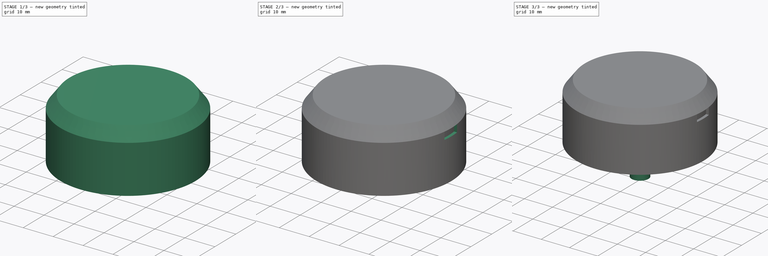
[diagram: build sequence overview — one tinted view per stage of 3, left to right]
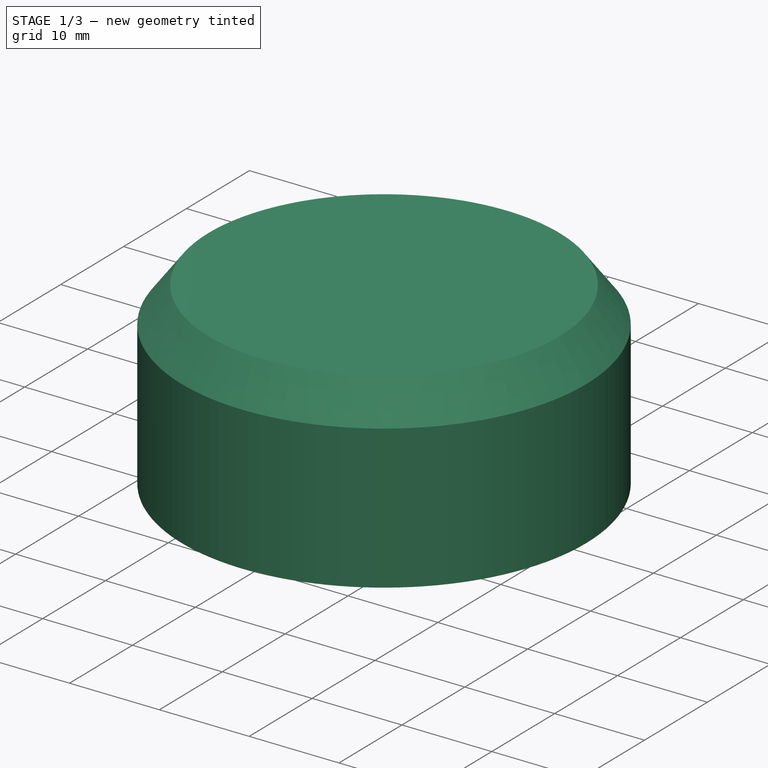
[diagram: stage 1 of 3 — iso view after this stage's code; geometry added in this stage tinted green]
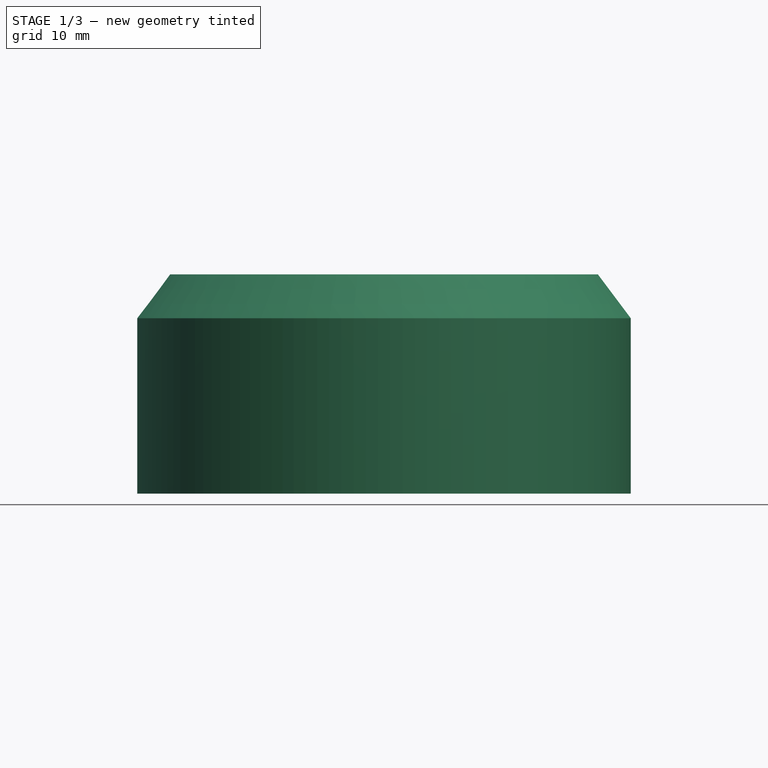
[diagram: stage 1 of 3 — front view after this stage's code; geometry added in this stage tinted green]
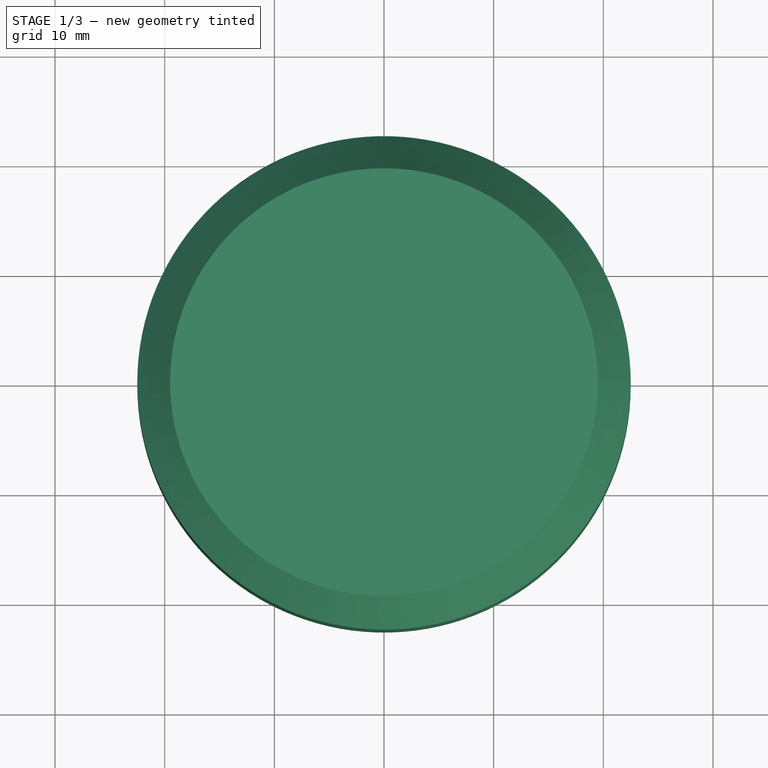
[diagram: stage 1 of 3 — top view after this stage's code; geometry added in this stage tinted green]
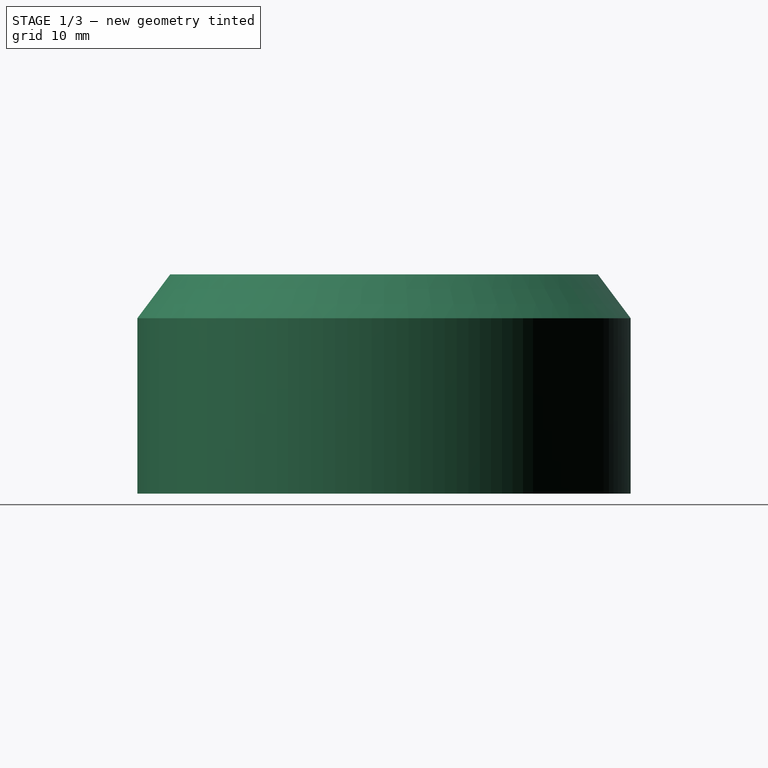
[diagram: stage 1 of 3 — right view after this stage's code; geometry added in this stage tinted green]
FCSTD DOCUMENT  (FreeCAD 0.19R24291 (Git))
Label: windDirectionHolder
License: All rights reserved
LicenseURL: http://en.wikipedia.org/wiki/All_rights_reserved
objects: Sketcher::SketchObject×4, PartDesign::Pad×2, PartDesign::Revolution×1, PartDesign::Plane×1, PartDesign::Pocket×1, PartDesign::PolarPattern×1, PartDesign::Body×1
note: 15 computed .brp shape members not serialized (recipe doc carries the construction recipe); baked Part::Feature solids carry a one-line shape summary decoded from their .brp

FEATURE [Sketcher::SketchObject] Sketch
  FullyConstrained = true
  MapMode = 5
  Placement = pos=(0,0,0) rot=(1,0,0;1.5708rad)
  Support = -> [XZ_Plane]
  sketch-geometry (8):
    g0: LineSegment StartX=0 StartY=20 StartZ=0 EndX=19.5 EndY=20 EndZ=0
    g1: LineSegment StartX=19.5 StartY=20 StartZ=0 EndX=22.5 EndY=16 EndZ=0
    g2: LineSegment StartX=22.5 StartY=16 StartZ=0 EndX=22.5 EndY=0 EndZ=0
    g3: LineSegment StartX=22.5 StartY=0 StartZ=0 EndX=21.5 EndY=0 EndZ=0
    g4: LineSegment StartX=21.5 StartY=0 StartZ=0 EndX=21.5 EndY=16 EndZ=0
    g5: LineSegment StartX=21.5 StartY=16 StartZ=0 EndX=19.25 EndY=19 EndZ=0
    g6: LineSegment StartX=19.25 StartY=19 StartZ=0 EndX=0 EndY=19 EndZ=0
    g7: LineSegment StartX=0 StartY=19 StartZ=0 EndX=0 EndY=20 EndZ=0
  constraints (24):
    c: PointOnObject(g0,g-2)
    c: Horizontal(g0)
    c: Coincident(g1,g0)
    c: Coincident(g2,g1)
    c: PointOnObject(g2,g-1)
    c: Vertical(g2)
    c: Coincident(g3,g2)
    c: PointOnObject(g3,g-1)
    c: Coincident(g4,g3)
    c: Vertical(g4)
    c: Coincident(g5,g4)
    c: Coincident(g6,g5)
    c: Horizontal(g6)
    c: Coincident(g7,g6)
    c: Coincident(g7,g0)
    c: Vertical(g7)
    c: DistanceY(g7,g7) = 1
    c: DistanceX(g3,g3) = 1
    c: Parallel(g5,g1)
    c: DistanceY(g4,g4) = 16
    c: DistanceX(g-1,g2) = 22.5
    c: DistanceX(g0,g1) = 3
    c: DistanceY(g1,g0) = 4
    c: DistanceY(g-1,g0) = 20
FEATURE [PartDesign::Revolution] Revolution
  Angle = 360
  Axis = (0,-2e-16,1)
  Base = (0,0,0)
  Placement = pos=(0,0,0) rot=(1,0,0;1.5708rad)
  Profile = -> Sketch
  ReferenceAxis = -> Sketch [V_Axis]
  Reversed = true
FEATURE [Sketcher::SketchObject] Sketch001
  FullyConstrained = true
  MapMode = 5
  Placement = pos=(0,-4.2e-15,19) rot=(1,0,0;3.14159rad)
  Support = -> [Revolution]
  sketch-geometry (4):
    g0: Circle CenterX=15 CenterY=0 CenterZ=0 NormalX=0 NormalY=0 NormalZ=1 AngleXU=0 Radius=1.3
    g1: Circle CenterX=-15 CenterY=0 CenterZ=0 NormalX=0 NormalY=0 NormalZ=1 AngleXU=0 Radius=1.3
    g2: Circle CenterX=-15 CenterY=0 CenterZ=0 NormalX=0 NormalY=0 NormalZ=1 AngleXU=0 Radius=3
    g3: Circle CenterX=15 CenterY=0 CenterZ=0 NormalX=0 NormalY=0 NormalZ=1 AngleXU=0 Radius=3
  constraints (10):
    c: PointOnObject(g0,g-1)
    c: PointOnObject(g1,g-1)
    c: Coincident(g2,g1)
    c: Coincident(g3,g0)
    c: Equal(g1,g0)
    c: Equal(g2,g3)
    c: Radius(g0) = 1.3
    c: Radius(g3) = 3
    c: DistanceX(g1,g-1) = 15
    c: DistanceX(g-1,g0) = 15
FEATURE [PartDesign::Pad] Pad
  BaseFeature = -> Revolution
  Direction = (1,1,1)
  Length = 3
  Length2 = 100
  Placement = pos=(0,0,0) rot=(1,0,0;1.5708rad)
  Profile = -> Sketch001
  Type = 0
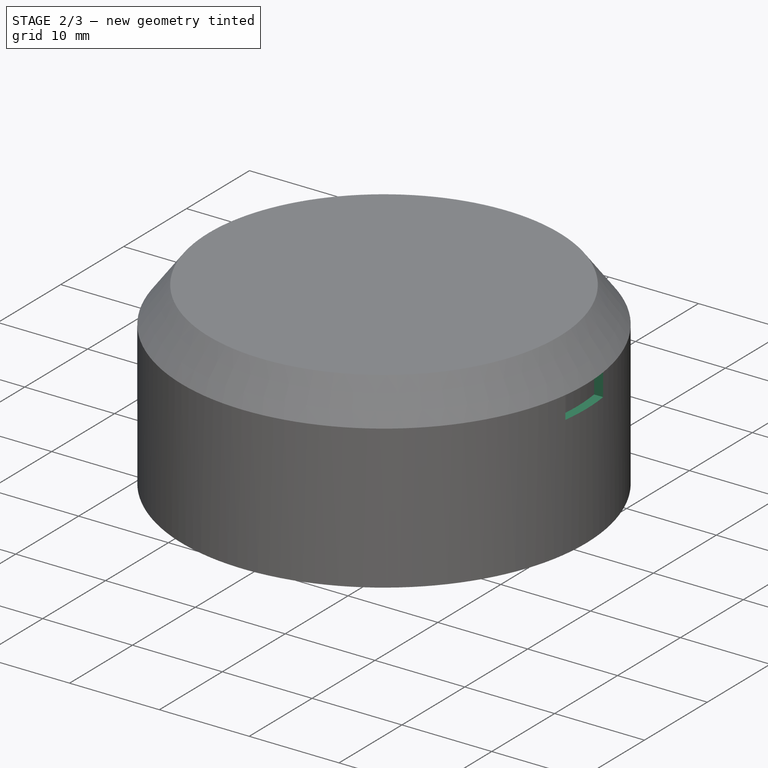
[diagram: stage 2 of 3 — iso view after this stage's code; geometry added in this stage tinted green]
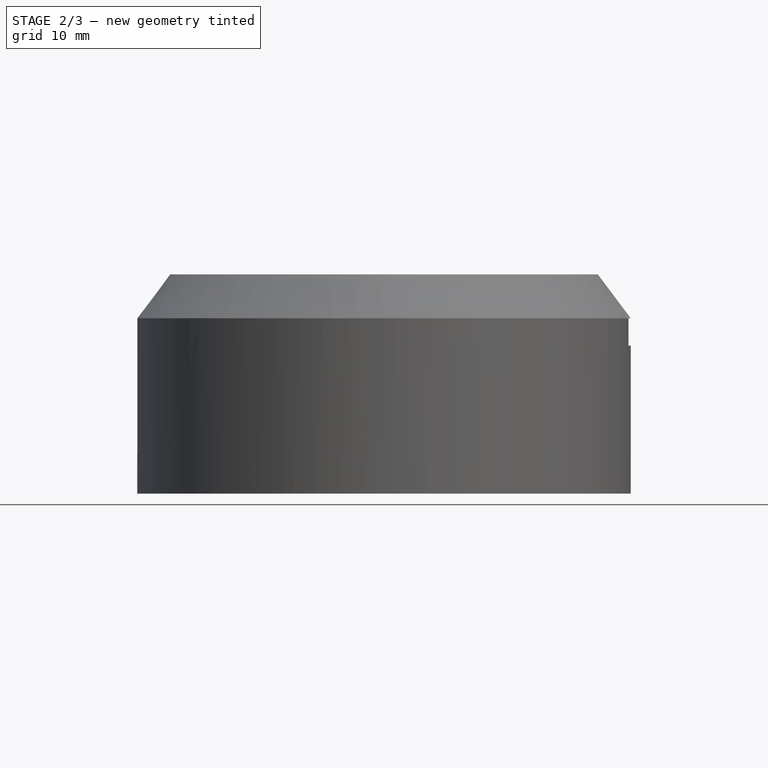
[diagram: stage 2 of 3 — front view after this stage's code; geometry added in this stage tinted green]
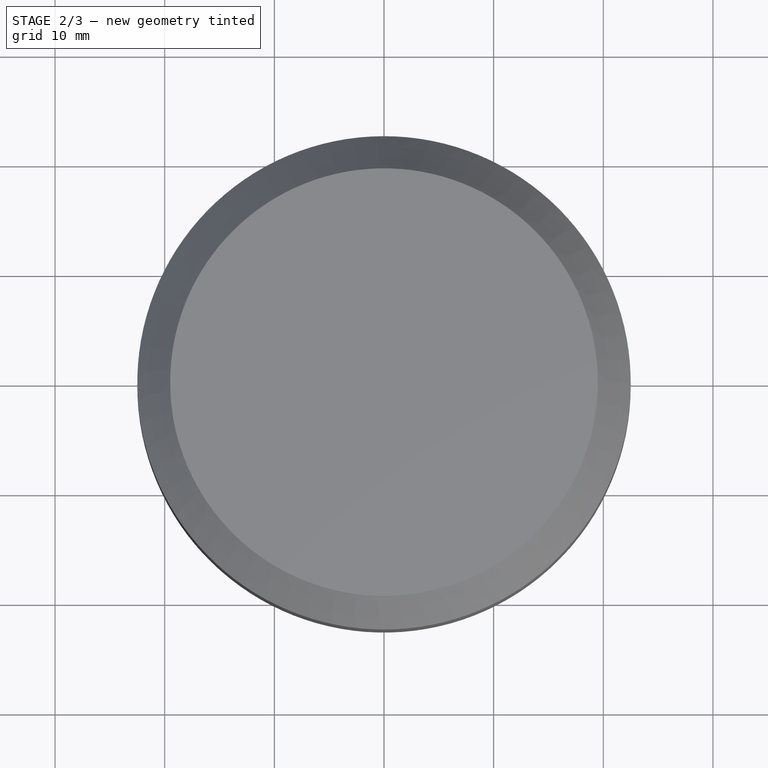
[diagram: stage 2 of 3 — top view after this stage's code; geometry added in this stage tinted green]
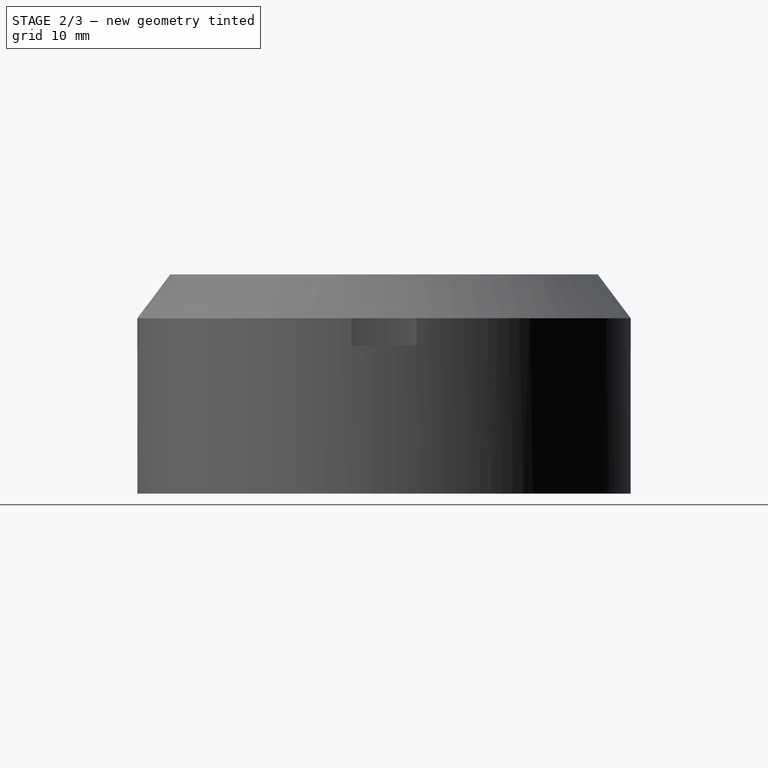
[diagram: stage 2 of 3 — right view after this stage's code; geometry added in this stage tinted green]
FEATURE [PartDesign::Plane] DatumPlane
  AttachmentOffset = pos=(22.5,0,0) rot=(0,1,0;1.5708rad)
  Length = 60
  MapMode = 45
  Placement = pos=(22.5,-2.3e-15,8) rot=(0,1,0;1.5708rad)
  ResizeMode = 0
  Support = -> [Pad]
  Width = 60
FEATURE [Sketcher::SketchObject] Sketch002
  FullyConstrained = true
  MapMode = 5
  Placement = pos=(22.5,-2.3e-15,8) rot=(0,1,0;1.5708rad)
  Support = -> [DatumPlane]
  sketch-geometry (4):
    g0: LineSegment StartX=-8 StartY=3 StartZ=0 EndX=-5.5 EndY=3 EndZ=0
    g1: LineSegment StartX=-5.5 StartY=3 StartZ=0 EndX=-5.5 EndY=-3 EndZ=0
    g2: LineSegment StartX=-5.5 StartY=-3 StartZ=0 EndX=-8 EndY=-3 EndZ=0
    g3: LineSegment StartX=-8 StartY=-3 StartZ=0 EndX=-8 EndY=3 EndZ=0
  constraints (12):
    c: Coincident(g0,g1)
    c: Coincident(g1,g2)
    c: Coincident(g2,g3)
    c: Coincident(g3,g0)
    c: Horizontal(g0)
    c: Horizontal(g2)
    c: Vertical(g1)
    c: Vertical(g3)
    c: DistanceX(g0,g0) = 2.5
    c: DistanceY(g1,g1) = 6
    c: DistanceX(g2,g-1) = 8
    c: DistanceY(g1,g-1) = 3
FEATURE [PartDesign::Pocket] Pocket
  BaseFeature = -> Pad
  Length = 2
  Length2 = 100
  Placement = pos=(0,0,0) rot=(1,0,0;1.5708rad)
  Profile = -> Sketch002
  Type = 0
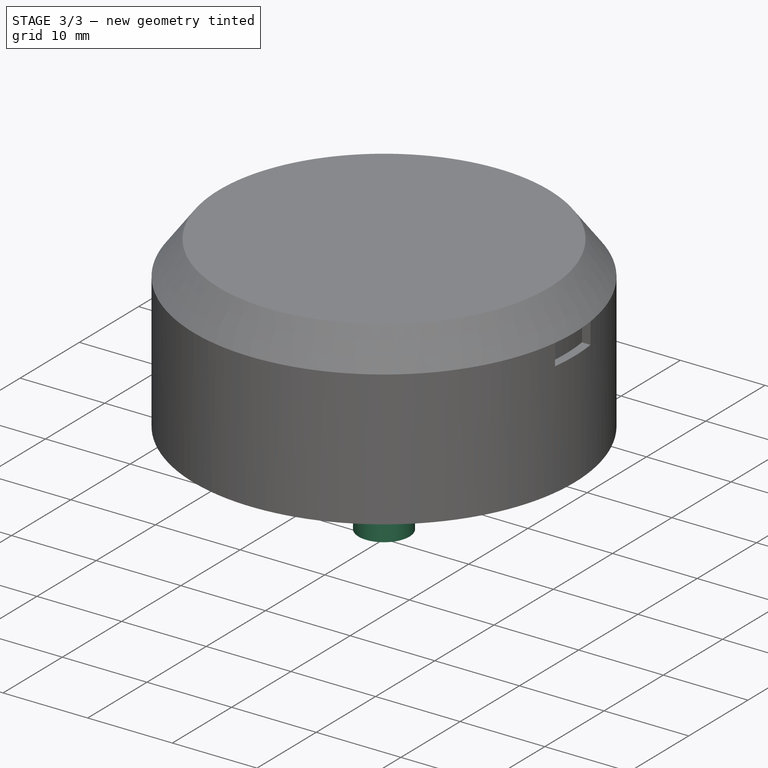
[diagram: stage 3 of 3 — iso view after this stage's code; geometry added in this stage tinted green]
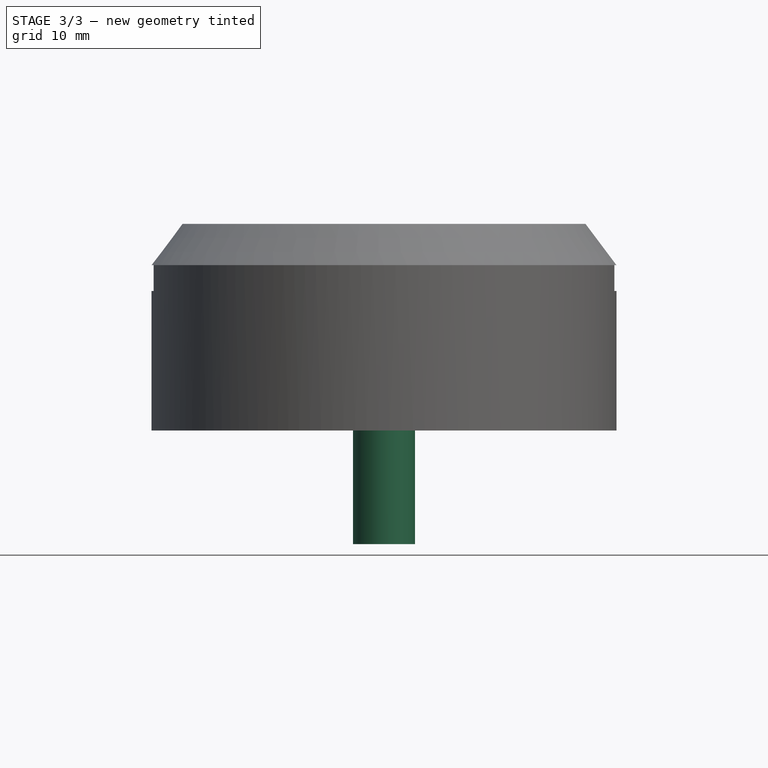
[diagram: stage 3 of 3 — front view after this stage's code; geometry added in this stage tinted green]
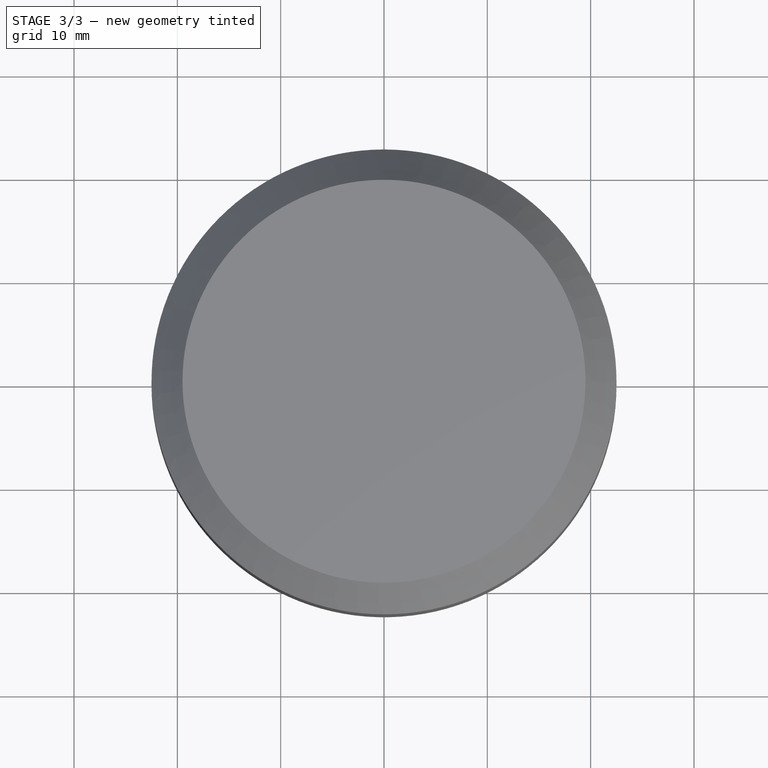
[diagram: stage 3 of 3 — top view after this stage's code; geometry added in this stage tinted green]
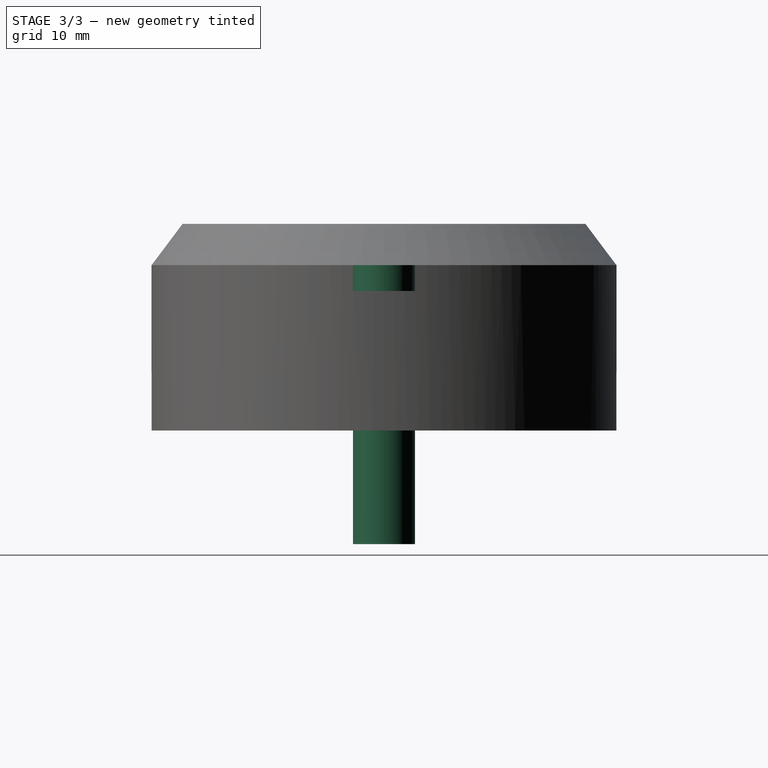
[diagram: stage 3 of 3 — right view after this stage's code; geometry added in this stage tinted green]
FEATURE [PartDesign::PolarPattern] PolarPattern
  Angle = 360
  Axis = -> Z_Axis
  BaseFeature = -> Pocket
  Occurrences = 2
  Originals = -> [Pocket]
  Placement = pos=(0,0,0) rot=(1,0,0;1.5708rad)
FEATURE [Sketcher::SketchObject] Sketch003
  FullyConstrained = true
  MapMode = 5
  Placement = pos=(0,-4.2e-15,19) rot=(1,0,0;3.14159rad)
  Support = -> [PolarPattern]
  sketch-geometry (1):
    g0: Circle CenterX=0 CenterY=0 CenterZ=0 NormalX=0 NormalY=0 NormalZ=1 AngleXU=0 Radius=3
  constraints (2):
    c: Coincident(g0,g-1)
    c: Radius(g0) = 3
FEATURE [PartDesign::Pad] Pad001
  BaseFeature = -> PolarPattern
  Direction = (1,1,1)
  Length = 30
  Length2 = 100
  Placement = pos=(0,0,0) rot=(1,0,0;1.5708rad)
  Profile = -> Sketch003
  Type = 0
FEATURE [PartDesign::Body] Body
  Group = -> [Sketch,Revolution,Sketch001,Pad,DatumPlane,Sketch002,Pocket,PolarPattern,Sketch003,Pad001]
  Origin = -> Origin
  Tip = -> Pad001
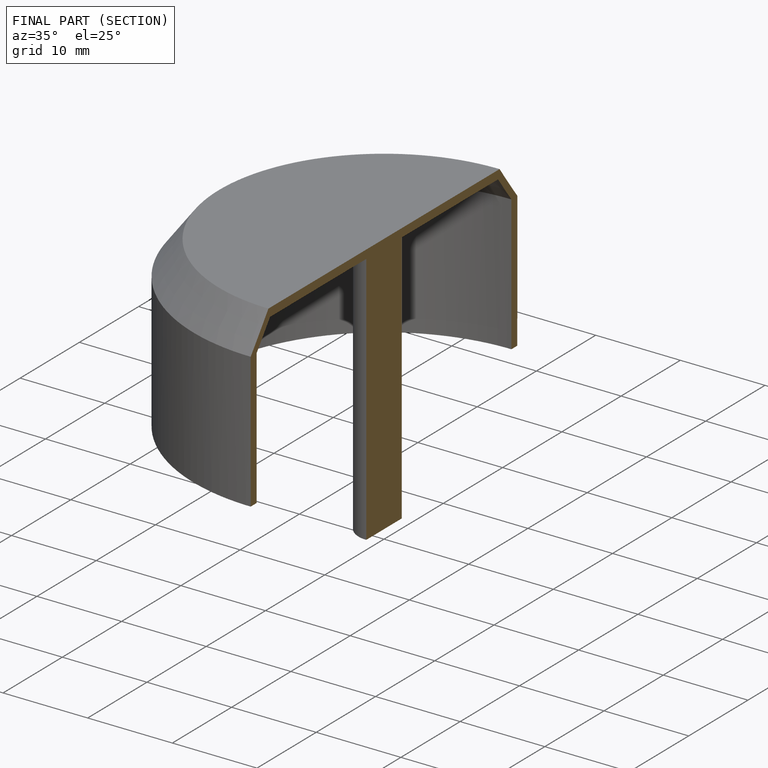
[diagram: finished part — half-section view (interior)]
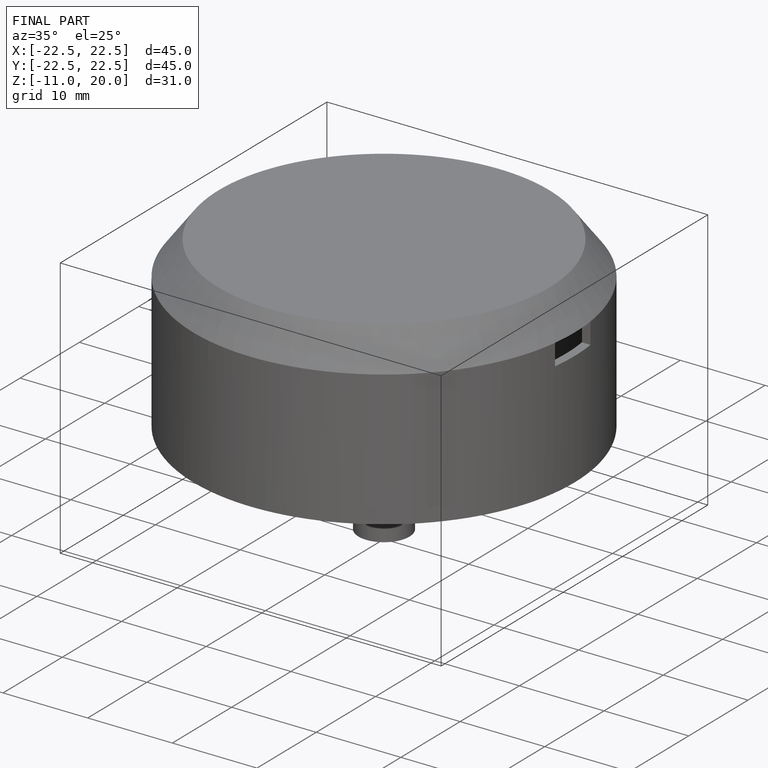
[diagram: finished part — iso view with bounding-box wireframe]
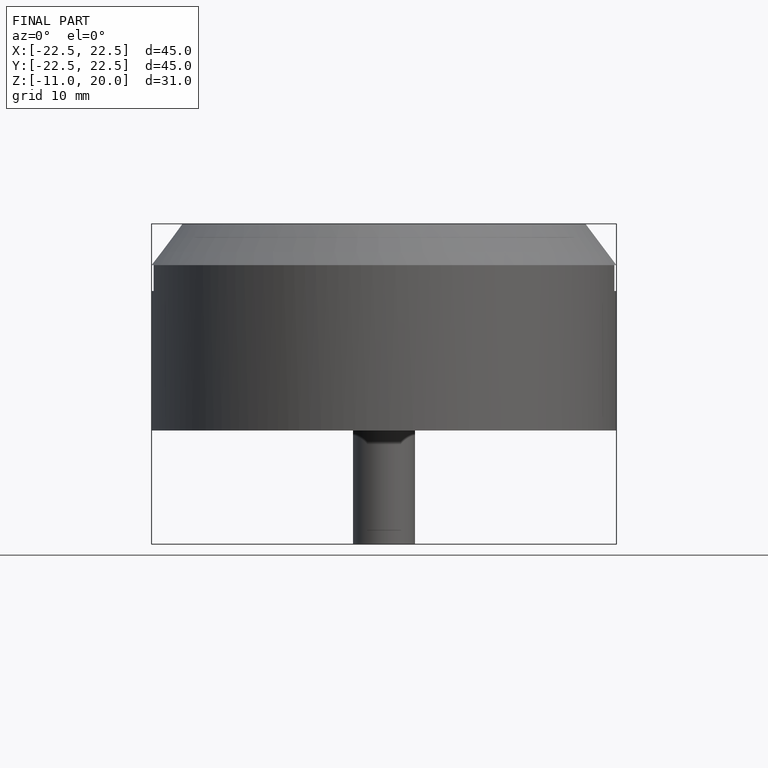
[diagram: finished part — front view with bounding-box wireframe]
